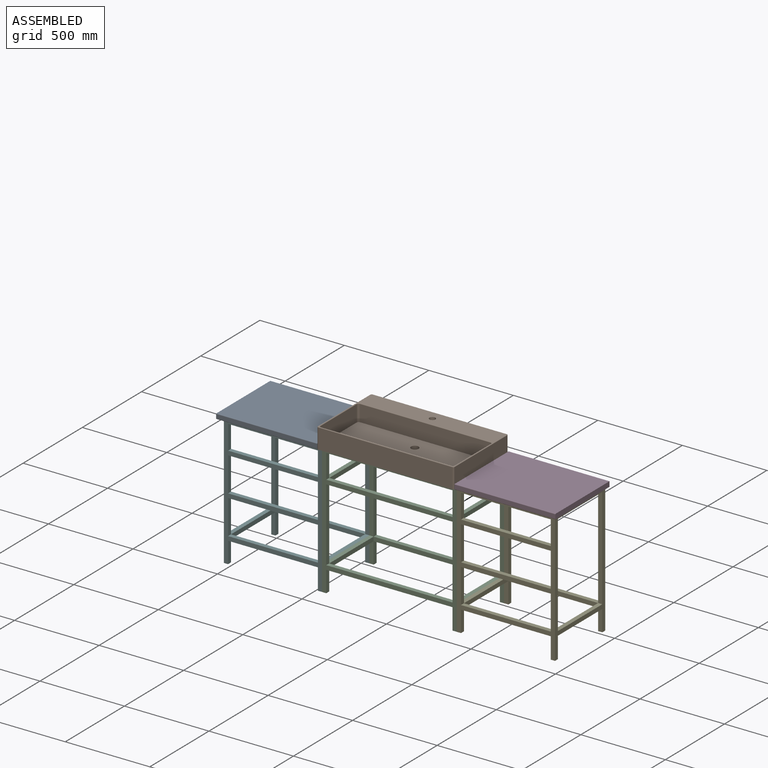
[diagram: assembled view]
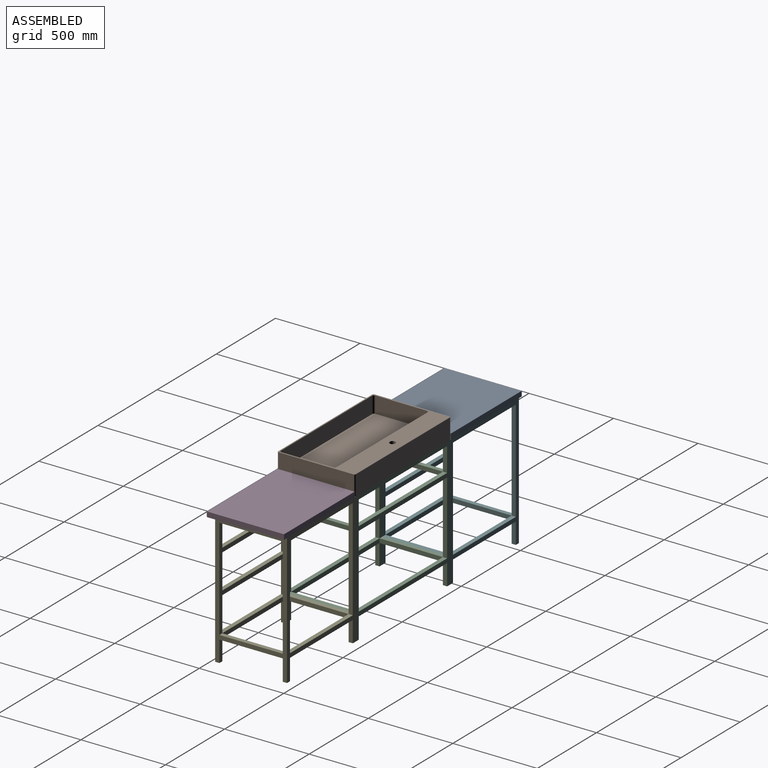
[diagram: assembled view, second angle]
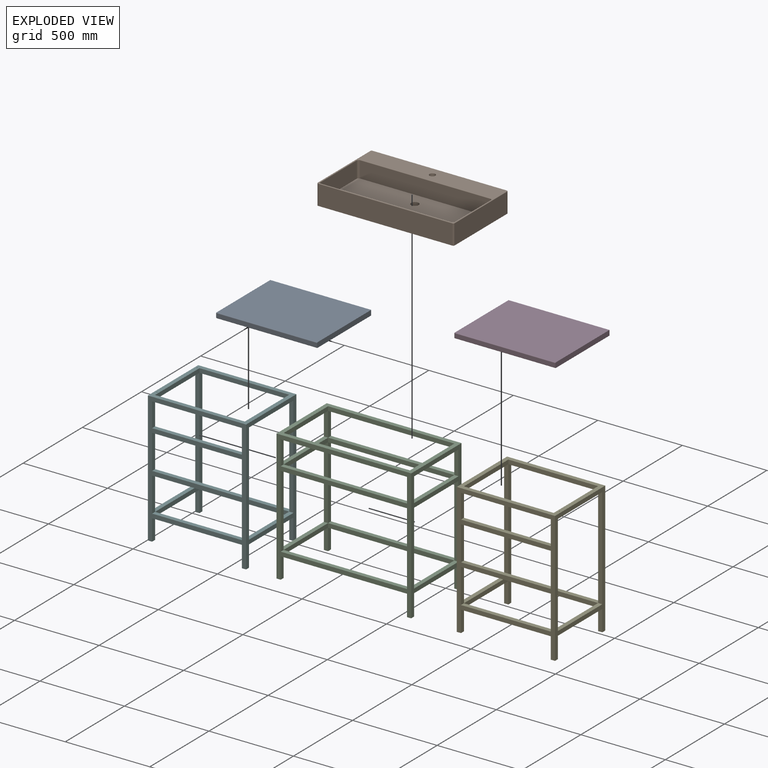
[diagram: exploded view]
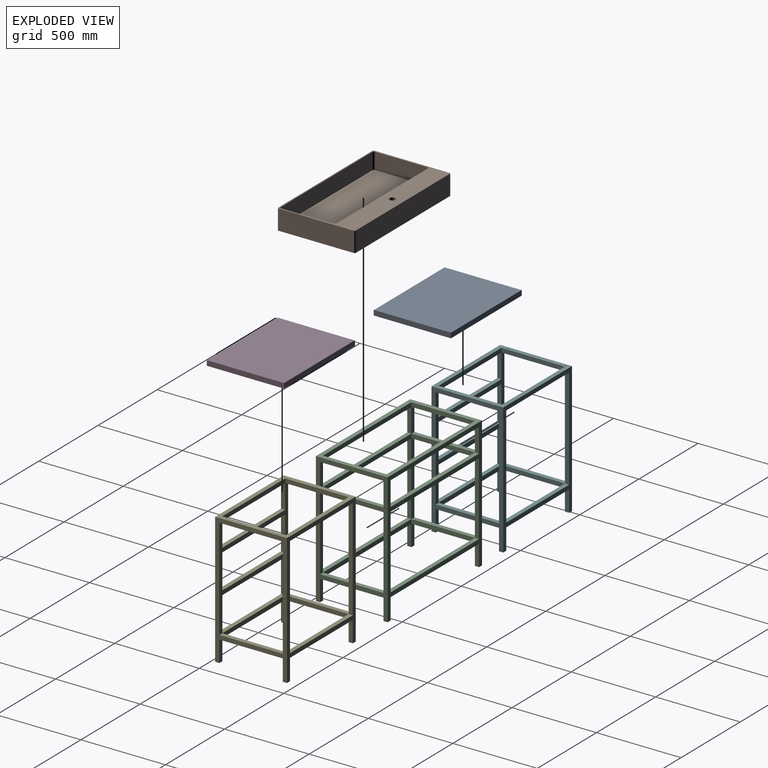
[diagram: exploded view, second angle]
ASSEMBLY  parts=6 mates=5
PART A: 17 faces, bbox 599x457x30 mm
  f0: plane 457x30mm, normal (1,0,0), area 13706.1mm2, adj f1,f3,f4,f5,f10,f13
  f1: plane 596x454mm, normal (0,0,1), area 270584mm2, adj f0,f5,f13,f16
  f2: plane 454x24mm, normal (-1,0,0), area 10896mm2, adj f5,f11,f14,f16
  f3: plane 596x454mm, normal (0,0,-1), area 270527.5mm2, adj f0,f5,f6,f8,f10,f11
  f4: plane 596x24mm, normal (0,-1,0), area 14304mm2, adj f0,f10,f13,f14
  f5: plane 599x30mm, normal (0,1,0), area 17966.1mm2, adj f0,f1,f2,f3,f11,f16
  f6: cylinder r=3mm len=20mm, axis (0,0,-1), area 377mm2, adj f3,f7
  f7: plane 6x6mm, normal (0,0,-1), area 28.3mm2, adj f6
  f8: cylinder r=3mm len=20mm, axis (0,0,-1), area 377mm2, adj f3,f9
  f9: plane 6x6mm, normal (0,0,-1), area 28.3mm2, adj f8
  f10: cylinder r=3mm len=596mm, axis (-1,0,0), area 2808.6mm2, adj f0,f3,f4,f12
  f11: cylinder r=3mm len=454mm, axis (0,-1,0), area 2139.4mm2, adj f2,f3,f5,f12
  f12: sphere r=3mm, area 14.1mm2, adj f10,f11,f14
  f13: cylinder r=3mm len=596mm, axis (1,0,0), area 2808.6mm2, adj f0,f1,f4,f15
  f14: cylinder r=3mm len=24mm, axis (0,0,1), area 113.1mm2, adj f2,f4,f12,f15
  f15: sphere r=3mm, area 14.1mm2, adj f13,f14,f16
  f16: cylinder r=3mm len=454mm, axis (0,1,0), area 2139.4mm2, adj f1,f2,f5,f15
PART B: 39 faces, bbox 811.3x461.3x146 mm
  f0: plane 806x456mm, normal (0,0,1), area 100977.2mm2, adj f19,f23,f24,f25,f26,f27,f28,f29
  f1: plane 444x118mm, normal (1,0,0), area 52392mm2, adj f3,f16,f18,f26
  f2: plane 444x118mm, normal (-1,0,0), area 52392mm2, adj f3,f15,f17,f27
  f3: plane 810x460mm, normal (0,0,-1), area 369619.5mm2, adj f1,f2,f4,f5,f15,f16,f17,f18
  f4: plane 794x118mm, normal (0,-1,0), area 93692mm2, adj f3,f17,f18,f23
  f5: plane 794x118mm, normal (0,1,0), area 93692mm2, adj f3,f15,f16,f30
  f6: plane 770x97mm, normal (0,-1,0), area 74690mm2, adj f10,f11,f14,f35
  f7: plane 305x97mm, normal (1,0,0), area 29585mm2, adj f10,f11,f12,f38
  f8: plane 770x97mm, normal (0,1,0), area 74690mm2, adj f10,f12,f13,f34
  f9: plane 305x97mm, normal (-1,0,0), area 29585mm2, adj f10,f13,f14,f31
  f10: plane 794x329mm, normal (0,0,1), area 259512mm2, adj f6,f7,f8,f9,f11,f12,f13,f14
  f11: cylinder r=12mm len=97mm, axis (0,0,-1), area 1828.4mm2, adj f6,f7,f10,f37
  f12: cylinder r=12mm len=97mm, axis (0,0,1), area 1828.4mm2, adj f7,f8,f10,f36
  f13: cylinder r=12mm len=97mm, axis (0,0,-1), area 1828.4mm2, adj f8,f9,f10,f32
  f14: cylinder r=12mm len=97mm, axis (0,0,1), area 1828.4mm2, adj f6,f9,f10,f33
  f15: cylinder r=8mm len=118mm, axis (0,0,-1), area 1482.8mm2, adj f2,f3,f5,f29
  f16: cylinder r=8mm len=118mm, axis (0,0,1), area 1482.8mm2, adj f1,f3,f5,f28
  f17: cylinder r=8mm len=118mm, axis (0,0,1), area 1482.8mm2, adj f2,f3,f4,f25
  f18: cylinder r=8mm len=118mm, axis (0,0,-1), area 1482.8mm2, adj f1,f3,f4,f24
  f19: cylinder r=17.5mm len=120mm, axis (0,0,1), area 13194.7mm2, adj f0,f3
  f20: cylinder r=22.5mm len=47mm, axis (0,0,1), area 6644.5mm2, adj f10,f22
  f21: cylinder r=25mm len=50mm, axis (0,0,1), area 4084.1mm2, adj f3,f22
  f22: plane 50x50mm, normal (0,0,-1), area 373.1mm2, adj f20,f21
  f23: cylinder r=2mm len=794mm, axis (1,0,0), area 2494.4mm2, adj f0,f4,f24,f25
  f24: torus R=6mm, axis (0,0,-1), area 35.9mm2, adj f0,f18,f23,f26
  f25: torus R=6mm, axis (0,0,-1), area 35.9mm2, adj f0,f17,f23,f27
  f26: cylinder r=2mm len=444mm, axis (0,-1,0), area 1394.9mm2, adj f0,f1,f24,f28
  f27: cylinder r=2mm len=444mm, axis (0,1,0), area 1394.9mm2, adj f0,f2,f25,f29
  f28: torus R=6mm, axis (0,0,-1), area 35.9mm2, adj f0,f16,f26,f30
  f29: torus R=6mm, axis (0,0,-1), area 35.9mm2, adj f0,f15,f27,f30
  f30: cylinder r=2mm len=794mm, axis (-1,0,0), area 2494.4mm2, adj f0,f5,f28,f29
  f31: cylinder r=2mm len=305mm, axis (0,1,0), area 958.2mm2, adj f0,f9,f32,f33
  f32: torus R=14mm, axis (0,0,-1), area 62.8mm2, adj f0,f13,f31,f34
  f33: torus R=14mm, axis (0,0,-1), area 62.8mm2, adj f0,f14,f31,f35
  f34: cylinder r=2mm len=770mm, axis (1,0,0), area 2419mm2, adj f0,f8,f32,f36
  f35: cylinder r=2mm len=770mm, axis (-1,0,0), area 2419mm2, adj f0,f6,f33,f37
  f36: torus R=14mm, axis (0,0,-1), area 62.8mm2, adj f0,f12,f34,f38
  f37: torus R=14mm, axis (0,0,-1), area 62.8mm2, adj f0,f11,f35,f38
  f38: cylinder r=2mm len=305mm, axis (0,-1,0), area 958.2mm2, adj f0,f7,f36,f37
PART C: 65 faces, bbox 797x425x775 mm
  f0: plane 143x25mm, normal (1,0,0), area 3575mm2, adj f20,f31,f34,f62
  f1: plane 375x25mm, normal (1,0,0), area 9375mm2, adj f41,f42,f61,f64
  f2: plane 432x25mm, normal (-1,0,0), area 10800mm2, adj f18,f32,f34,f63
  f3: plane 143x25mm, normal (-1,0,0), area 3575mm2, adj f17,f31,f34,f62
  f4: plane 432x25mm, normal (1,0,0), area 10800mm2, adj f35,f40,f57,f60
  f5: plane 432x25mm, normal (1,0,0), area 10800mm2, adj f23,f32,f34,f63
  f6: plane 375x25mm, normal (-1,0,0), area 9375mm2, adj f47,f48,f61,f64
  f7: plane 432x25mm, normal (-1,0,0), area 10800mm2, adj f35,f49,f57,f60
  f8: plane 125x25mm, normal (1,0,0), area 3125mm2, adj f35,f36,f37,f56
  f9: plane 375x25mm, normal (1,0,0), area 9375mm2, adj f19,f38,f39,f58
  f10: plane 375x25mm, normal (-1,0,0), area 9375mm2, adj f19,f50,f51,f58
  f11: plane 125x25mm, normal (-1,0,0), area 3125mm2, adj f35,f52,f53,f56
  f12: plane 143x25mm, normal (1,0,0), area 3575mm2, adj f35,f43,f54,f59
  f13: plane 375x25mm, normal (1,0,0), area 9375mm2, adj f16,f24,f44,f55
  f14: plane 375x25mm, normal (-1,0,0), area 9375mm2, adj f16,f24,f45,f55
  f15: plane 143x25mm, normal (-1,0,0), area 3575mm2, adj f35,f46,f54,f59
  f16: plane 747x25mm, normal (0,1,0), area 18675mm2, adj f13,f14,f24,f31
  f17: plane 143x25mm, normal (0,1,0), area 3575mm2, adj f3,f33,f45,f47
  f18: plane 432x25mm, normal (0,1,0), area 10800mm2, adj f2,f33,f48,f50
  f19: plane 747x25mm, normal (0,1,0), area 18675mm2, adj f9,f10,f28,f32
  f20: plane 143x25mm, normal (0,1,0), area 3575mm2, adj f0,f25,f42,f44
  f21: plane 125x25mm, normal (0,1,0), area 3125mm2, adj f29,f30,f33,f51
  f22: plane 125x25mm, normal (0,1,0), area 3125mm2, adj f25,f26,f27,f38
  f23: plane 432x25mm, normal (0,1,0), area 10800mm2, adj f5,f25,f39,f41
  f24: plane 797x425mm, normal (0,0,1), area 58600mm2, adj f13,f14,f16,f25,f33,f34,f35,f55
  f25: plane 775x425mm, normal (-1,0,0), area 66875mm2, adj f20,f22,f23,f24,f26,f34,f35,f36
  f26: plane 25x25mm, normal (0,0,-1), area 625mm2, adj f22,f25,f27,f34
  f27: plane 125x25mm, normal (1,0,0), area 3125mm2, adj f22,f26,f28,f34
  f28: plane 747x25mm, normal (0,0,-1), area 18675mm2, adj f19,f27,f29,f34
  f29: plane 125x25mm, normal (-1,0,0), area 3125mm2, adj f21,f28,f30,f34
  f30: plane 25x25mm, normal (0,0,-1), area 625mm2, adj f21,f29,f33,f34
  f31: plane 747x25mm, normal (0,0,-1), area 18675mm2, adj f0,f3,f16,f34
  f32: plane 747x25mm, normal (0,0,1), area 18675mm2, adj f2,f5,f19,f34
  f33: plane 775x425mm, normal (1,0,0), area 66875mm2, adj f17,f18,f21,f24,f30,f34,f35,f45
  f34: plane 797x775mm, normal (0,-1,0), area 94775mm2, adj f0,f2,f3,f5,f24,f25,f26,f27
  f35: plane 797x775mm, normal (0,1,0), area 94775mm2, adj f4,f7,f8,f11,f12,f15,f24,f25
  f36: plane 25x25mm, normal (0,0,-1), area 625mm2, adj f8,f25,f35,f37
  f37: plane 125x25mm, normal (0,-1,0), area 3125mm2, adj f8,f25,f36,f38
  f38: plane 375x25mm, normal (0,0,-1), area 9375mm2, adj f9,f22,f25,f37
  f39: plane 375x25mm, normal (0,0,1), area 9375mm2, adj f9,f23,f25,f40
  f40: plane 432x25mm, normal (0,-1,0), area 10800mm2, adj f4,f25,f39,f41
  f41: plane 375x25mm, normal (0,0,-1), area 9375mm2, adj f1,f23,f25,f40
  f42: plane 375x25mm, normal (0,0,1), area 9375mm2, adj f1,f20,f25,f43
  f43: plane 143x25mm, normal (0,-1,0), area 3575mm2, adj f12,f25,f42,f44
  f44: plane 375x25mm, normal (0,0,-1), area 9375mm2, adj f13,f20,f25,f43
  f45: plane 375x25mm, normal (0,0,-1), area 9375mm2, adj f14,f17,f33,f46
  f46: plane 143x25mm, normal (0,-1,0), area 3575mm2, adj f15,f33,f45,f47
  f47: plane 375x25mm, normal (0,0,1), area 9375mm2, adj f6,f17,f33,f46
  f48: plane 375x25mm, normal (0,0,-1), area 9375mm2, adj f6,f18,f33,f49
  f49: plane 432x25mm, normal (0,-1,0), area 10800mm2, adj f7,f33,f48,f50
  f50: plane 375x25mm, normal (0,0,1), area 9375mm2, adj f10,f18,f33,f49
  f51: plane 375x25mm, normal (0,0,-1), area 9375mm2, adj f10,f21,f33,f52
  f52: plane 125x25mm, normal (0,-1,0), area 3125mm2, adj f11,f33,f51,f53
  f53: plane 25x25mm, normal (0,0,-1), area 625mm2, adj f11,f33,f35,f52
  f54: plane 747x25mm, normal (0,0,-1), area 18675mm2, adj f12,f15,f35,f55
  f55: plane 747x25mm, normal (0,-1,0), area 18675mm2, adj f13,f14,f24,f54
  f56: plane 747x25mm, normal (0,0,-1), area 18675mm2, adj f8,f11,f35,f58
  f57: plane 747x25mm, normal (0,0,1), area 18675mm2, adj f4,f7,f35,f58
  f58: plane 747x25mm, normal (0,-1,0), area 18675mm2, adj f9,f10,f56,f57
  f59: plane 747x25mm, normal (0,0,1), area 18675mm2, adj f12,f15,f35,f61
  f60: plane 747x25mm, normal (0,0,-1), area 18675mm2, adj f4,f7,f35,f61
  f61: plane 747x25mm, normal (0,-1,0), area 18675mm2, adj f1,f6,f59,f60
  f62: plane 747x25mm, normal (0,0,1), area 18675mm2, adj f0,f3,f34,f64
  f63: plane 747x25mm, normal (0,0,-1), area 18675mm2, adj f2,f5,f34,f64
  f64: plane 747x25mm, normal (0,1,0), area 18675mm2, adj f1,f6,f62,f63
PART D: 19 faces, bbox 599x457x30 mm
  f0: plane 457x30mm, normal (1,0,0), area 13706.1mm2, adj f1,f3,f4,f5,f12,f15
  f1: plane 596x454mm, normal (0,0,1), area 270584mm2, adj f0,f5,f15,f18
  f2: plane 454x24mm, normal (-1,0,0), area 10896mm2, adj f5,f13,f16,f18
  f3: plane 596x454mm, normal (0,0,-1), area 270499.2mm2, adj f0,f5,f6,f8,f10,f12,f13
  f4: plane 596x24mm, normal (0,-1,0), area 14304mm2, adj f0,f12,f15,f16
  f5: plane 599x30mm, normal (0,1,0), area 17966.1mm2, adj f0,f1,f2,f3,f13,f18
  f6: cylinder r=3mm len=20mm, axis (0,0,-1), area 377mm2, adj f3,f7
  f7: plane 6x6mm, normal (0,0,-1), area 28.3mm2, adj f6
  f8: cylinder r=3mm len=20mm, axis (0,0,-1), area 377mm2, adj f3,f9
  f9: plane 6x6mm, normal (0,0,-1), area 28.3mm2, adj f8
  f10: cylinder r=3mm len=20mm, axis (0,0,-1), area 377mm2, adj f3,f11
  f11: plane 6x6mm, normal (0,0,-1), area 28.3mm2, adj f10
  f12: cylinder r=3mm len=596mm, axis (-1,0,0), area 2808.6mm2, adj f0,f3,f4,f14
  f13: cylinder r=3mm len=454mm, axis (0,-1,0), area 2139.4mm2, adj f2,f3,f5,f14
  f14: sphere r=3mm, area 14.1mm2, adj f12,f13,f16
  f15: cylinder r=3mm len=596mm, axis (1,0,0), area 2808.6mm2, adj f0,f1,f4,f17
  f16: cylinder r=3mm len=24mm, axis (0,0,1), area 113.1mm2, adj f2,f4,f14,f17
  f17: sphere r=3mm, area 14.1mm2, adj f15,f16,f18
  f18: cylinder r=3mm len=454mm, axis (0,1,0), area 2139.4mm2, adj f1,f2,f5,f17
PART E: 54 faces, bbox 581x425x775 mm
  f0: plane 203.5x25mm, normal (1,0,0), area 5087.5mm2, adj f13,f28,f51,f53
  f1: plane 203.5x25mm, normal (-1,0,0), area 5087.5mm2, adj f13,f28,f51,f53
  f2: plane 143x25mm, normal (1,0,0), area 3575mm2, adj f13,f24,f28,f50
  f3: plane 143x25mm, normal (-1,0,0), area 3575mm2, adj f13,f24,f28,f50
  f4: plane 125x25mm, normal (1,0,0), area 3125mm2, adj f29,f30,f31,f45
  f5: plane 375x25mm, normal (1,0,0), area 9375mm2, adj f12,f32,f33,f47
  f6: plane 600x25mm, normal (-1,0,0), area 15000mm2, adj f29,f37,f43,f46
  f7: plane 375x25mm, normal (-1,0,0), area 9375mm2, adj f12,f38,f39,f47
  f8: plane 600x25mm, normal (1,0,0), area 15000mm2, adj f29,f34,f43,f46
  f9: plane 375x25mm, normal (1,0,0), area 9375mm2, adj f11,f16,f35,f44
  f10: plane 375x25mm, normal (-1,0,0), area 9375mm2, adj f11,f16,f36,f44
  f11: plane 531x25mm, normal (0,1,0), area 13275mm2, adj f9,f10,f16,f24
  f12: plane 531x25mm, normal (0,1,0), area 13275mm2, adj f5,f7,f20,f26
  f13: plane 600x581mm, normal (0,1,0), area 56550mm2, adj f0,f1,f2,f3,f17,f23,f25,f27
  f14: plane 125x25mm, normal (0,1,0), area 3125mm2, adj f21,f22,f27,f39
  f15: plane 125x25mm, normal (0,1,0), area 3125mm2, adj f17,f18,f19,f32
  f16: plane 581x425mm, normal (0,0,1), area 47771.7mm2, adj f9,f10,f11,f17,f27,f28,f29,f44
  f17: plane 775x425mm, normal (-1,0,0), area 57500mm2, adj f13,f15,f16,f18,f28,f29,f30,f31
  f18: plane 25x25mm, normal (0,0,-1), area 625mm2, adj f15,f17,f19,f28
  f19: plane 125x25mm, normal (1,0,0), area 3125mm2, adj f15,f18,f20,f28
  f20: plane 531x25mm, normal (0,0,-1), area 13275mm2, adj f12,f19,f21,f28
  f21: plane 125x25mm, normal (-1,0,0), area 3125mm2, adj f14,f20,f22,f28
  f22: plane 25x25mm, normal (0,0,-1), area 625mm2, adj f14,f21,f27,f28
  f23: plane 203.5x25mm, normal (1,0,0), area 5087.5mm2, adj f13,f26,f28,f52
  f24: plane 531x25mm, normal (0,0,-1), area 13275mm2, adj f2,f3,f11,f28
  f25: plane 203.5x25mm, normal (-1,0,0), area 5087.5mm2, adj f13,f26,f28,f52
  f26: plane 531x25mm, normal (0,0,1), area 13275mm2, adj f12,f23,f25,f28
  f27: plane 775x425mm, normal (1,0,0), area 57500mm2, adj f13,f14,f16,f22,f28,f29,f36,f37
  f28: plane 775x581mm, normal (0,-1,0), area 91850mm2, adj f0,f1,f2,f3,f16,f17,f18,f19
  f29: plane 775x581mm, normal (0,1,0), area 65300mm2, adj f4,f6,f8,f16,f17,f27,f30,f41
  f30: plane 25x25mm, normal (0,0,-1), area 625mm2, adj f4,f17,f29,f31
  f31: plane 125x25mm, normal (0,-1,0), area 3125mm2, adj f4,f17,f30,f32
  f32: plane 375x25mm, normal (0,0,-1), area 9375mm2, adj f5,f15,f17,f31
  f33: plane 375x25mm, normal (0,0,1), area 9375mm2, adj f5,f13,f17,f34
  f34: plane 600x25mm, normal (0,-1,0), area 15000mm2, adj f8,f17,f33,f35
  f35: plane 375x25mm, normal (0,0,-1), area 9375mm2, adj f9,f13,f17,f34
  f36: plane 375x25mm, normal (0,0,-1), area 9375mm2, adj f10,f13,f27,f37
  f37: plane 600x25mm, normal (0,-1,0), area 15000mm2, adj f6,f27,f36,f38
  f38: plane 375x25mm, normal (0,0,1), area 9375mm2, adj f7,f13,f27,f37
  f39: plane 375x25mm, normal (0,0,-1), area 9375mm2, adj f7,f14,f27,f40
  f40: plane 125x25mm, normal (0,-1,0), area 3125mm2, adj f27,f39,f41,f42
  f41: plane 25x25mm, normal (0,0,-1), area 625mm2, adj f27,f29,f40,f42
  f42: plane 125x25mm, normal (-1,0,0), area 3125mm2, adj f29,f40,f41,f45
  f43: plane 531x25mm, normal (0,0,-1), area 13275mm2, adj f6,f8,f29,f44
  f44: plane 531x25mm, normal (0,-1,0), area 13275mm2, adj f9,f10,f16,f43
  f45: plane 531x25mm, normal (0,0,-1), area 13275mm2, adj f4,f29,f42,f47
  f46: plane 531x25mm, normal (0,0,1), area 13275mm2, adj f6,f8,f29,f47
  f47: plane 531x25mm, normal (0,-1,0), area 13275mm2, adj f5,f7,f45,f46
  f48: cylinder r=3mm len=15mm, axis (0,0,1), area 282.7mm2, adj f16,f49
  f49: plane 6x6mm, normal (0,0,1), area 28.3mm2, adj f48
  f50: plane 531x25mm, normal (0,0,1), area 13275mm2, adj f2,f3,f13,f28
  f51: plane 531x25mm, normal (0,0,-1), area 13275mm2, adj f0,f1,f13,f28
  f52: plane 531x25mm, normal (0,0,-1), area 13275mm2, adj f13,f23,f25,f28
  f53: plane 531x25mm, normal (0,0,1), area 13275mm2, adj f0,f1,f13,f28
PART F: 56 faces, bbox 581x425x775 mm
  f0: plane 203.5x25mm, normal (1,0,0), area 5087.5mm2, adj f13,f28,f49,f50
  f1: plane 203.5x25mm, normal (-1,0,0), area 5087.5mm2, adj f13,f28,f49,f50
  f2: plane 143x25mm, normal (1,0,0), area 3575mm2, adj f13,f24,f28,f48
  f3: plane 143x25mm, normal (-1,0,0), area 3575mm2, adj f13,f24,f28,f48
  f4: plane 125x25mm, normal (1,0,0), area 3125mm2, adj f29,f30,f31,f45
  f5: plane 375x25mm, normal (1,0,0), area 9375mm2, adj f12,f32,f33,f47
  f6: plane 600x25mm, normal (-1,0,0), area 15000mm2, adj f29,f37,f43,f46
  f7: plane 375x25mm, normal (-1,0,0), area 9375mm2, adj f12,f38,f39,f47
  f8: plane 600x25mm, normal (1,0,0), area 15000mm2, adj f29,f34,f43,f46
  f9: plane 375x25mm, normal (1,0,0), area 9375mm2, adj f11,f16,f35,f44
  f10: plane 375x25mm, normal (-1,0,0), area 9375mm2, adj f11,f16,f36,f44
  f11: plane 531x25mm, normal (0,1,0), area 13275mm2, adj f9,f10,f16,f24
  f12: plane 531x25mm, normal (0,1,0), area 13275mm2, adj f5,f7,f20,f26
  f13: plane 600x581mm, normal (0,1,0), area 56550mm2, adj f0,f1,f2,f3,f17,f23,f25,f27
  f14: plane 125x25mm, normal (0,1,0), area 3125mm2, adj f21,f22,f27,f39
  f15: plane 125x25mm, normal (0,1,0), area 3125mm2, adj f17,f18,f19,f32
  f16: plane 581x425mm, normal (0,0,1), area 47743.5mm2, adj f9,f10,f11,f17,f27,f28,f29,f44
  f17: plane 775x425mm, normal (-1,0,0), area 57500mm2, adj f13,f15,f16,f18,f28,f29,f30,f31
  f18: plane 25x25mm, normal (0,0,-1), area 625mm2, adj f15,f17,f19,f28
  f19: plane 125x25mm, normal (1,0,0), area 3125mm2, adj f15,f18,f20,f28
  f20: plane 531x25mm, normal (0,0,-1), area 13275mm2, adj f12,f19,f21,f28
  f21: plane 125x25mm, normal (-1,0,0), area 3125mm2, adj f14,f20,f22,f28
  f22: plane 25x25mm, normal (0,0,-1), area 625mm2, adj f14,f21,f27,f28
  f23: plane 203.5x25mm, normal (1,0,0), area 5087.5mm2, adj f13,f26,f28,f51
  f24: plane 531x25mm, normal (0,0,-1), area 13275mm2, adj f2,f3,f11,f28
  f25: plane 203.5x25mm, normal (-1,0,0), area 5087.5mm2, adj f13,f26,f28,f51
  f26: plane 531x25mm, normal (0,0,1), area 13275mm2, adj f12,f23,f25,f28
  f27: plane 775x425mm, normal (1,0,0), area 57500mm2, adj f13,f14,f16,f22,f28,f29,f36,f37
  f28: plane 775x581mm, normal (0,-1,0), area 91850mm2, adj f0,f1,f2,f3,f16,f17,f18,f19
  f29: plane 775x581mm, normal (0,1,0), area 65300mm2, adj f4,f6,f8,f16,f17,f27,f30,f41
  f30: plane 25x25mm, normal (0,0,-1), area 625mm2, adj f4,f17,f29,f31
  f31: plane 125x25mm, normal (0,-1,0), area 3125mm2, adj f4,f17,f30,f32
  f32: plane 375x25mm, normal (0,0,-1), area 9375mm2, adj f5,f15,f17,f31
  f33: plane 375x25mm, normal (0,0,1), area 9375mm2, adj f5,f13,f17,f34
  f34: plane 600x25mm, normal (0,-1,0), area 15000mm2, adj f8,f17,f33,f35
  f35: plane 375x25mm, normal (0,0,-1), area 9375mm2, adj f9,f13,f17,f34
  f36: plane 375x25mm, normal (0,0,-1), area 9375mm2, adj f10,f13,f27,f37
  f37: plane 600x25mm, normal (0,-1,0), area 15000mm2, adj f6,f27,f36,f38
  f38: plane 375x25mm, normal (0,0,1), area 9375mm2, adj f7,f13,f27,f37
  f39: plane 375x25mm, normal (0,0,-1), area 9375mm2, adj f7,f14,f27,f40
  f40: plane 125x25mm, normal (0,-1,0), area 3125mm2, adj f27,f39,f41,f42
  f41: plane 25x25mm, normal (0,0,-1), area 625mm2, adj f27,f29,f40,f42
  f42: plane 125x25mm, normal (-1,0,0), area 3125mm2, adj f29,f40,f41,f45
  f43: plane 531x25mm, normal (0,0,-1), area 13275mm2, adj f6,f8,f29,f44
  f44: plane 531x25mm, normal (0,-1,0), area 13275mm2, adj f9,f10,f16,f43
  f45: plane 531x25mm, normal (0,0,-1), area 13275mm2, adj f4,f29,f42,f47
  f46: plane 531x25mm, normal (0,0,1), area 13275mm2, adj f6,f8,f29,f47
  f47: plane 531x25mm, normal (0,-1,0), area 13275mm2, adj f5,f7,f45,f46
  f48: plane 531x25mm, normal (0,0,1), area 13275mm2, adj f2,f3,f13,f28
  f49: plane 531x25mm, normal (0,0,-1), area 13275mm2, adj f0,f1,f13,f28
  f50: plane 531x25mm, normal (0,0,1), area 13275mm2, adj f0,f1,f13,f28
  f51: plane 531x25mm, normal (0,0,-1), area 13275mm2, adj f13,f23,f25,f28
  f52: cylinder r=3mm len=20mm, axis (0,0,1), area 377mm2, adj f16,f53
  f53: plane 6x6mm, normal (0,0,1), area 28.3mm2, adj f52
  f54: cylinder r=3mm len=20mm, axis (0,0,1), area 377mm2, adj f16,f55
  f55: plane 6x6mm, normal (0,0,1), area 28.3mm2, adj f54
PLACE A t=(-1230.83,986.83,135.29)mm
PLACE B t=(-525.83,986.83,180.29)mm
PLACE C t=(-525.83,561.83,-204.71)mm
PLACE D t=(179.17,986.83,135.29)mm
PLACE E t=(163.17,561.83,-204.71)mm
PLACE F t=(-1214.83,561.83,-204.71)mm
MATE fastened B.f3 <-> C.f24  axis (0,0,-1) through (-525.83,986.83,120.29)mm
MATE fastened C.f33 <-> E.f17  axis (1,0,0) through (-127.33,774.33,120.29)mm
MATE fastened C.f25 <-> F.f27  axis (-1,0,0) through (-924.33,774.33,120.29)mm
MATE fastened D.f10 <-> E.f48  axis (0,0,-1) through (441.17,618.83,120.29)mm
MATE fastened F.f52 <-> A.f8  axis (0,0,1) through (-1492.83,618.83,120.29)mm
